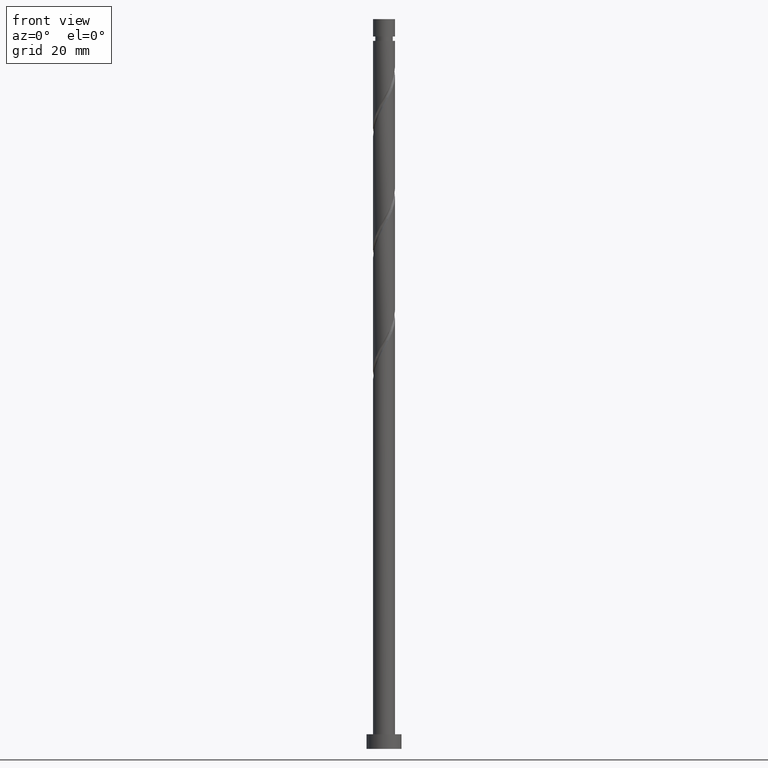
[diagram: clean part render]
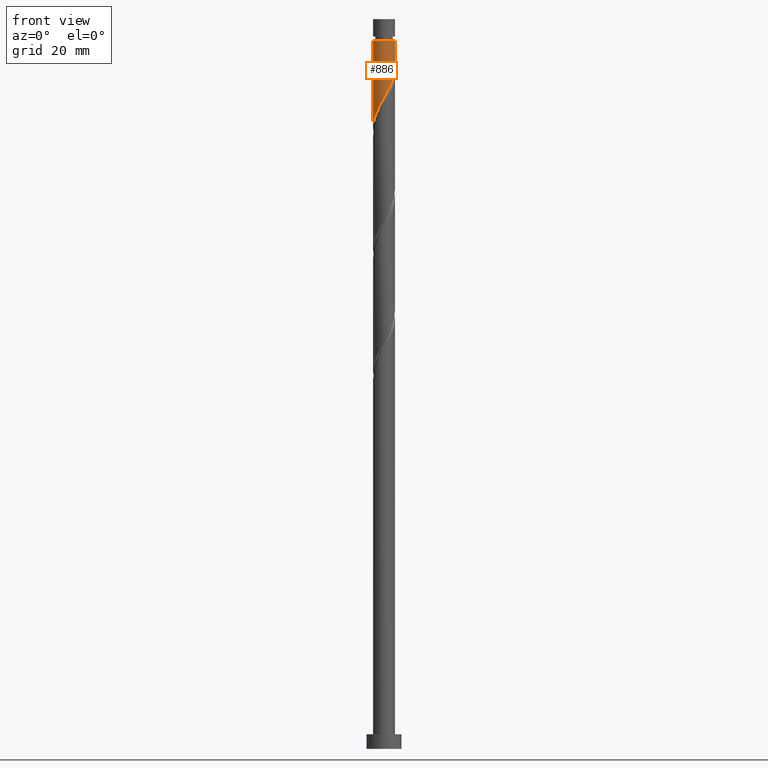
[diagram: same view with one face highlighted and labeled with its STEP entity id]
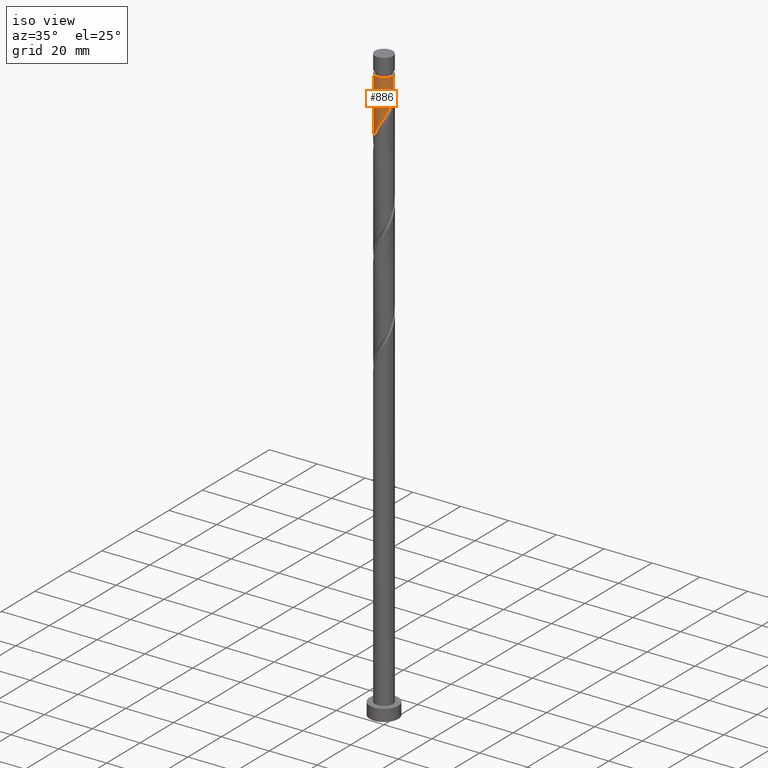
[diagram: same view with one face highlighted and labeled with its STEP entity id]
A machine part, front view. The second image highlights one B-rep face of the part: STEP entity #886.
A second angle (iso view) of the same face is appended — the face is thin or edge-on in the first view.
In plain terms, the highlighted cylindrical surface (edge-blend (fillet) strip) has radius 3.75 mm, axis along (-0, -0, -1).
Its self-contained STEP definition (entity closure, byte-faithful):
#4 = CARTESIAN_POINT ( 'NONE',  ( 0.000000000000000000, 0.000000000000000000, 242.5393494288620104 ) ) ;
#16 = CARTESIAN_POINT ( 'NONE',  ( -3.700805247676850485, -0.6054258986593490377, 213.6931955827081993 ) ) ;
#116 = EDGE_CURVE ( 'NONE', #1720, #1019, #177, .T. ) ;
#140 = CARTESIAN_POINT ( 'NONE',  ( -2.721625614882287270, -2.619652961878153885, 217.6996058391184476 ) ) ;
#149 = CARTESIAN_POINT ( 'NONE',  ( -3.448378672004678513, -1.473493988607774030, 215.2957596852722020 ) ) ;
#156 = VERTEX_POINT ( 'NONE', #1022 ) ;
#172 = ORIENTED_EDGE ( 'NONE', *, *, #417, .T. ) ;
#177 =( BOUNDED_CURVE ( )  B_SPLINE_CURVE ( 2, ( #472, #327, #1336, #1765, #482, #198, #637, #710, #1713, #1568, #693, #423, #281, #984, #1556, #1015, #431, #1284, #1267, #1001, #853, #140, #860, #1433, #149, #726, #16, #1255, #1823 ),
 .UNSPECIFIED., .F., .T. ) 
 B_SPLINE_CURVE_WITH_KNOTS ( ( 3, 2, 2, 2, 2, 2, 2, 2, 2, 2, 2, 2, 2, 2, 3 ),
 ( 0.3045271625973832164, 0.3076923076923077094, 0.3173076923076922906, 0.3269230769230769273, 0.3365384615384615641, 0.3461538461538461453, 0.3557692307692307820, 0.3653846153846153633, 0.3750000000000000000, 0.3846153846153846367, 0.3942307692307692180, 0.4038461538461538547, 0.4134615384615384359, 0.4230769230769230727, 0.4295271625973833829 ),
 .UNSPECIFIED. ) 
 CURVE ( )  GEOMETRIC_REPRESENTATION_ITEM ( )  RATIONAL_B_SPLINE_CURVE ( ( 0.9061636035682825163, 0.9069090390690711656, 0.9090909090909277124, 0.9024626128164311423, 0.9090909090909277124, 0.9024626128164311423, 0.9090909090909277124, 0.9024626128164311423, 0.9090909090909277124, 0.9024626128164311423, 0.9090909090909277124, 0.9024626128164311423, 0.9090909090909277124, 0.9024626128164311423, 0.9090909090909277124, 0.9024626128164311423, 0.9090909090909277124, 0.9024626128164311423, 0.9090909090909277124, 0.9024626128164311423, 0.9090909090909277124, 0.9024626128164311423, 0.9090909090909277124, 0.9024626128164311423, 0.9090909090909277124, 0.9024626128164311423, 0.9090909090909277124, 0.9046444828382875780, 0.9061636035682825163 ) ) 
 REPRESENTATION_ITEM ( '' )  );
#198 = CARTESIAN_POINT ( 'NONE',  ( 3.414519813292434591, -1.615822413786171197, 230.5201186596312368 ) ) ;
#218 = CYLINDRICAL_SURFACE ( 'NONE', #393, 3.750000000000000000 ) ;
#275 = ORIENTED_EDGE ( 'NONE', *, *, #663, .F. ) ;
#281 = CARTESIAN_POINT ( 'NONE',  ( 1.047094441034371437, -3.600846182712463150, 224.9111443006568720 ) ) ;
#327 = CARTESIAN_POINT ( 'NONE',  ( 3.750000000000000000, -0.1491492387628810534, 233.1864337224542396 ) ) ;
#393 = AXIS2_PLACEMENT_3D ( 'NONE', #1195, #1666, #1337 ) ;
#417 = EDGE_CURVE ( 'NONE', #156, #462, #890, .T. ) ;
#423 = CARTESIAN_POINT ( 'NONE',  ( 1.484316325817624183, -3.473705899061065416, 225.7124263519389729 ) ) ;
#431 = CARTESIAN_POINT ( 'NONE',  ( -0.7462405778299673331, -3.674999999999998490, 221.7060160955286960 ) ) ;
#452 = DIRECTION ( 'NONE',  ( -0.000000000000000000, -0.000000000000000000, -1.000000000000000000 ) ) ;
#462 = VERTEX_POINT ( 'NONE', #540 ) ;
#472 = CARTESIAN_POINT ( 'NONE',  ( 3.749999999999999556, -1.914360132260696467E-15, 233.4506046380872135 ) ) ;
#482 = CARTESIAN_POINT ( 'NONE',  ( 3.558255750386909000, -1.183771943762181866, 231.3214007109132808 ) ) ;
#484 = VECTOR ( 'NONE', #1732, 1000.000000000000000 ) ;
#540 = CARTESIAN_POINT ( 'NONE',  ( -3.749999999999982681, 0.000000000000000000, 242.5393494288620104 ) ) ;
#637 = CARTESIAN_POINT ( 'NONE',  ( 3.171564136060946559, -2.000920021103287816, 229.7188366083491928 ) ) ;
#663 = EDGE_CURVE ( 'NONE', #156, #1720, #1289, .T. ) ;
#665 = FACE_OUTER_BOUND ( 'NONE', #1244, .T. ) ;
#678 = DIRECTION ( 'NONE',  ( -1.000000000000000000, 0.000000000000000000, 0.000000000000000000 ) ) ;
#693 = CARTESIAN_POINT ( 'NONE',  ( 1.878406675807777315, -3.245626035186550240, 226.5137084032210169 ) ) ;
#710 = CARTESIAN_POINT ( 'NONE',  ( 2.928608458829457195, -2.386017628420403991, 228.9175545570671488 ) ) ;
#726 = CARTESIAN_POINT ( 'NONE',  ( -3.627293234367512831, -1.054785011351622170, 214.4944776339901580 ) ) ;
#745 = CARTESIAN_POINT ( 'NONE',  ( 3.750000000000000000, 4.592425496802573972E-16, 250.0000000000000000 ) ) ;
#776 = CARTESIAN_POINT ( 'NONE',  ( -3.749999999999999556, 4.337222174653141511E-16, 212.6172713047538707 ) ) ;
#853 = CARTESIAN_POINT ( 'NONE',  ( -2.368620873487326861, -2.907255605838628298, 218.5008878904004916 ) ) ;
#860 = CARTESIAN_POINT ( 'NONE',  ( -2.995544862262065511, -2.255927963871039665, 216.8983237878363752 ) ) ;
#886 = ADVANCED_FACE ( 'NONE', ( #665 ), #218, .T. ) ;
#890 = CIRCLE ( 'NONE', #1471, 3.749999999999982681 ) ;
#984 = CARTESIAN_POINT ( 'NONE',  ( 0.6098725562511163600, -3.727986466363861329, 224.1098622493748564 ) ) ;
#1001 = CARTESIAN_POINT ( 'NONE',  ( -2.015616132092366453, -3.194858249799103156, 219.3021699416825356 ) ) ;
#1015 = CARTESIAN_POINT ( 'NONE',  ( -0.3000147894881602939, -3.765610010921039752, 222.5072981468107400 ) ) ;
#1019 = VERTEX_POINT ( 'NONE', #776 ) ;
#1022 = CARTESIAN_POINT ( 'NONE',  ( 3.749999999999982681, 4.592425496802563125E-16, 242.5393494288620104 ) ) ;
#1152 = CARTESIAN_POINT ( 'NONE',  ( -3.750000000000000000, 0.000000000000000000, 250.0000000000000000 ) ) ;
#1184 = ORIENTED_EDGE ( 'NONE', *, *, #116, .F. ) ;
#1195 = CARTESIAN_POINT ( 'NONE',  ( 0.000000000000000000, 0.000000000000000000, 250.0000000000000000 ) ) ;
#1244 = EDGE_LOOP ( 'NONE', ( #275, #172, #1329, #1184 ) ) ;
#1255 = CARTESIAN_POINT ( 'NONE',  ( -3.750000000000000888, -0.3047116445139148588, 213.1569720421022112 ) ) ;
#1267 = CARTESIAN_POINT ( 'NONE',  ( -1.604041249132071023, -3.389624119439029748, 220.1034519929645796 ) ) ;
#1284 = CARTESIAN_POINT ( 'NONE',  ( -1.192466366171776260, -3.584389989078958560, 220.9047340442466520 ) ) ;
#1289 = LINE ( 'NONE', #745, #1559 ) ;
#1329 = ORIENTED_EDGE ( 'NONE', *, *, #1551, .T. ) ;
#1336 = CARTESIAN_POINT ( 'NONE',  ( 3.738154474233785329, -0.2978273438855582045, 232.9239648134773688 ) ) ;
#1337 = DIRECTION ( 'NONE',  ( -1.000000000000000000, 0.000000000000000000, 0.000000000000000000 ) ) ;
#1433 = CARTESIAN_POINT ( 'NONE',  ( -3.269464109641842864, -1.892202965863927444, 216.0970417365543597 ) ) ;
#1471 = AXIS2_PLACEMENT_3D ( 'NONE', #4, #1553, #678 ) ;
#1551 = EDGE_CURVE ( 'NONE', #462, #1019, #1715, .T. ) ;
#1553 = DIRECTION ( 'NONE',  ( -0.000000000000000000, -0.000000000000000000, -1.000000000000000000 ) ) ;
#1556 = CARTESIAN_POINT ( 'NONE',  ( 0.1549288833814780886, -3.746798238642448986, 223.3085801980928125 ) ) ;
#1559 = VECTOR ( 'NONE', #452, 1000.000000000000000 ) ;
#1568 = CARTESIAN_POINT ( 'NONE',  ( 2.272497025797930892, -3.017546171312037728, 227.3149904545030324 ) ) ;
#1613 = CARTESIAN_POINT ( 'NONE',  ( 3.749999999999999556, -1.914360132260696467E-15, 233.4506046380872135 ) ) ;
#1666 = DIRECTION ( 'NONE',  ( -0.000000000000000000, -0.000000000000000000, -1.000000000000000000 ) ) ;
#1713 = CARTESIAN_POINT ( 'NONE',  ( 2.600552742313694488, -2.701781899866218861, 228.1162725057850764 ) ) ;
#1715 = LINE ( 'NONE', #1152, #484 ) ;
#1720 = VERTEX_POINT ( 'NONE', #1613 ) ;
#1732 = DIRECTION ( 'NONE',  ( -0.000000000000000000, -0.000000000000000000, -1.000000000000000000 ) ) ;
#1765 = CARTESIAN_POINT ( 'NONE',  ( 3.701991687481383408, -0.7517214737381890943, 232.1226827621953248 ) ) ;
#1823 = CARTESIAN_POINT ( 'NONE',  ( -3.749999999999999556, 4.337222174653141511E-16, 212.6172713047538707 ) ) ;